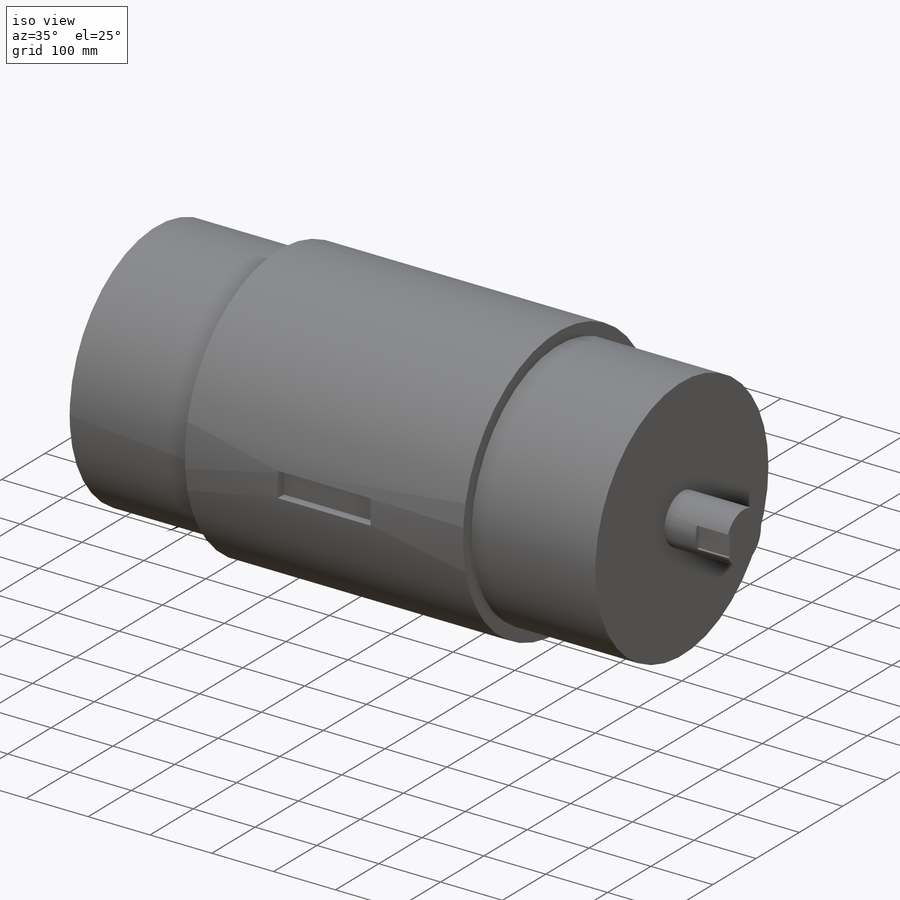
[diagram: iso view]
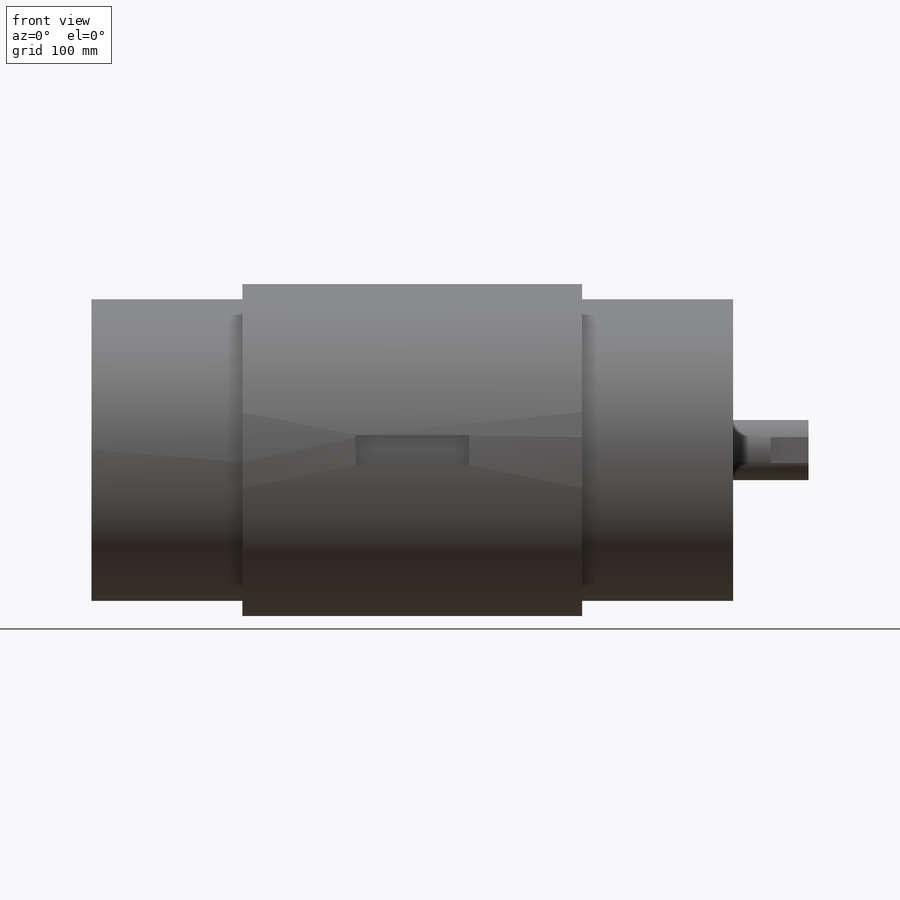
[diagram: front view]
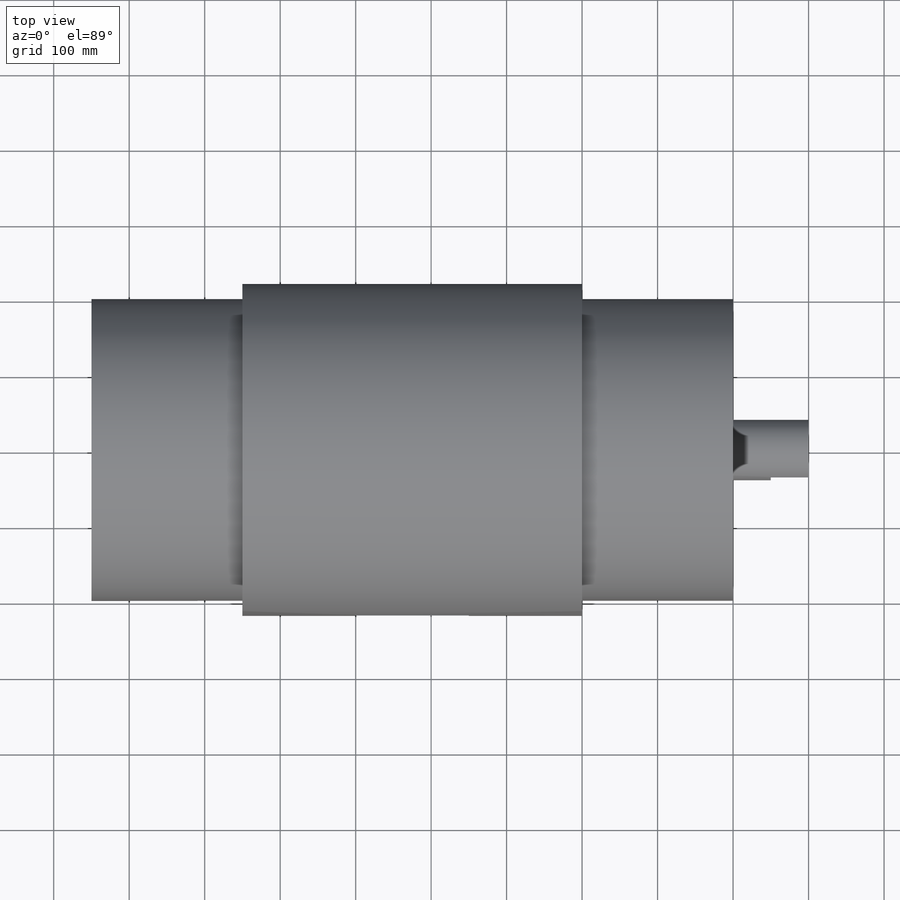
[diagram: top view]
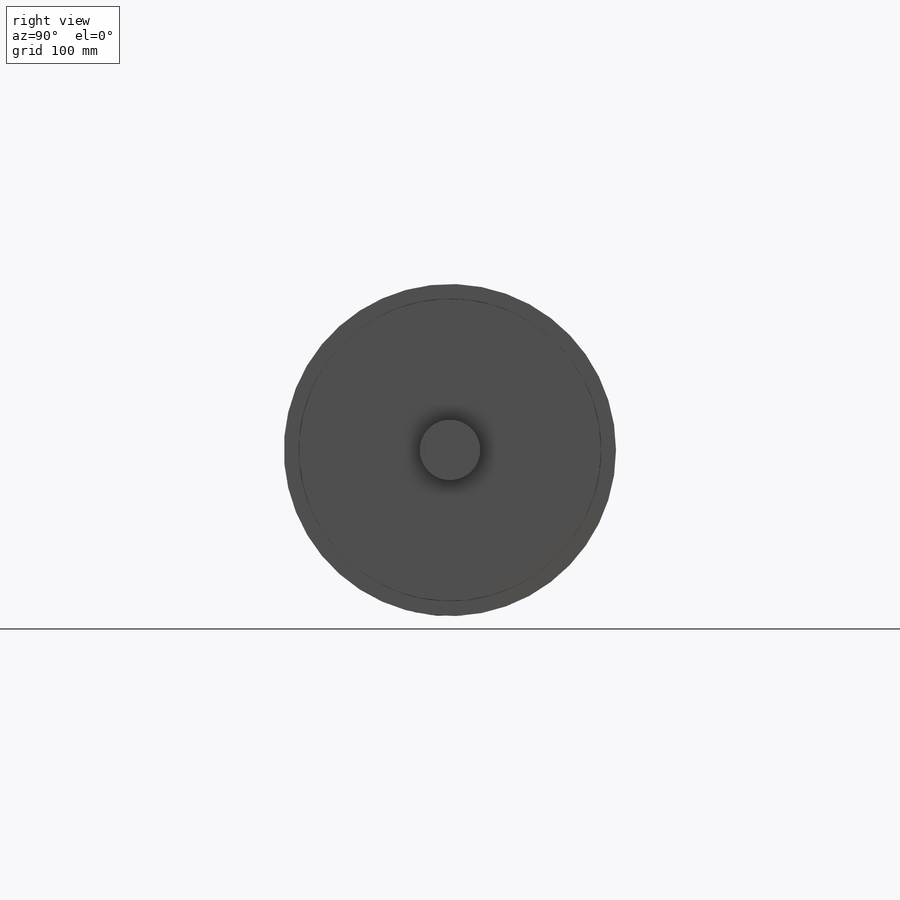
[diagram: right view]
SOLIDWORKS PART (.sldprt)
format: sldprt  version: not decoded by parser v0  size: 226,816 bytes
history: native  units: mm
features: plane x7, sketch x6, extrude x4, cut_extrude x2, material x1 (+12 scaffold rows collapsed)
feature tree (32):
  scaffold x12  (default folders/planes/origin — collapsed)
  material  "Cast Alloy Steel"
  plane  "Plane1"  Offset=800mm
  sketch  "Sketch3"  dims[D1=~198.720694mm]
  plane  "Plane2"  Offset=200mm
  plane  "Plane3"  Offset=400mm
  sketch  "Sketch5"  dims[D1=~220.522943mm]
  extrude  "Boss-Extrude2"  Depth=200mm
  plane  "Plane4"  Offset=0mm
  sketch  "Sketch6"  dims[D1=20.0mm]
  extrude  "Boss-Extrude5"  Depth=100mm
  plane  "Plane6"  Offset=0mm
  sketch  "Sketch8"  dims[D1=~39.842805mm]
  cut_extrude  "Cut-Extrude1"  Depth=50mm
  extrude  "Boss-Extrude6"  Depth=450mm
  plane  "Plane7"  Offset=0mm
  sketch  "Sketch9"  dims[D1=~180.124737mm]
  extrude  "Boss-Extrude7"  Depth=200mm
  plane  "Plane8"
  sketch  "Sketch10"  dims[D1=40.0mm]
  cut_extrude  "Cut-Extrude2"  Depth=15mm
decode coverage: 12 of 12 modeling features carry decoded parameters
note: ~ marks probable driven/reference dimensions
note: suppression state not decoded; provenance and decode notes live in map.json
